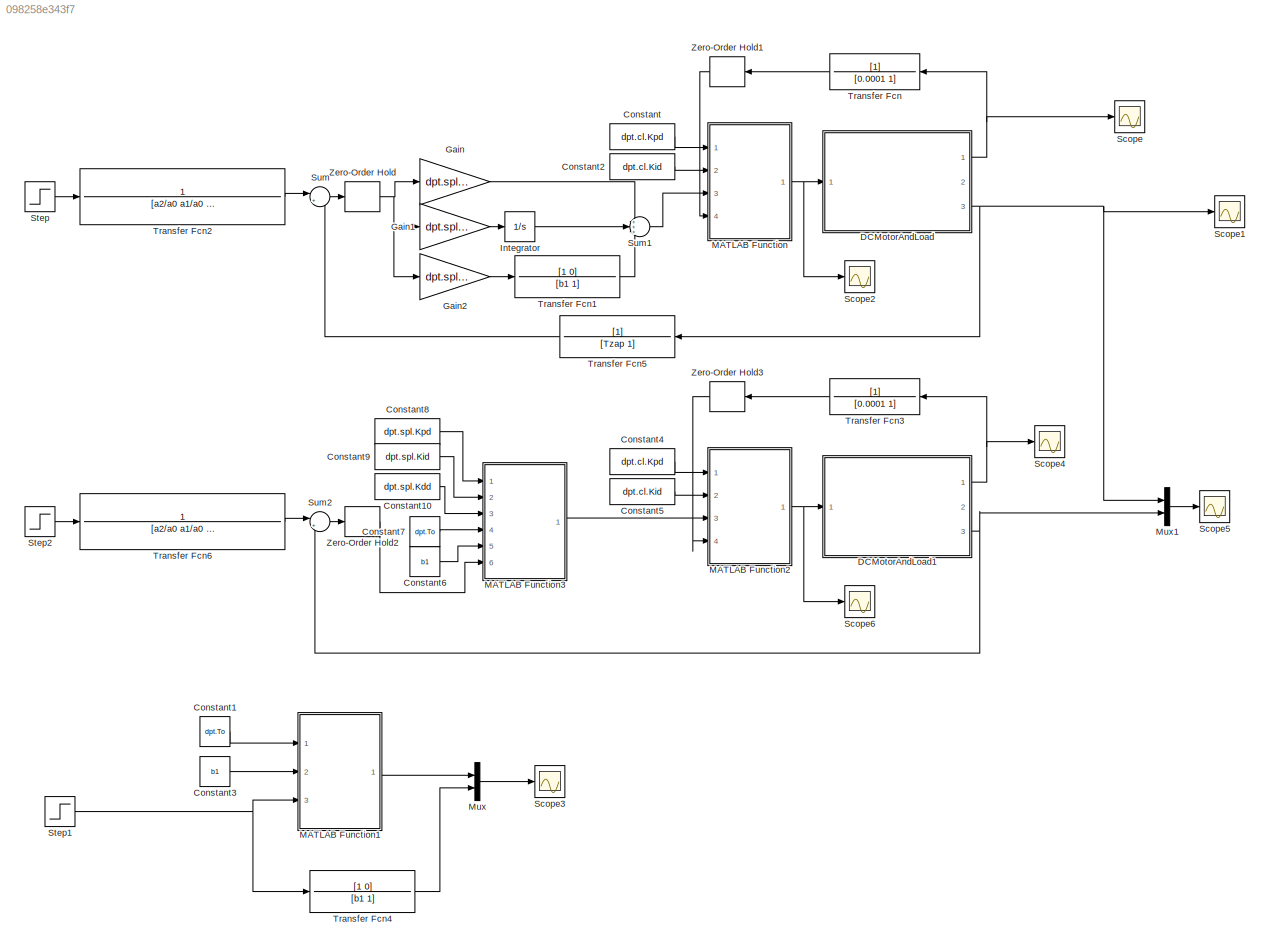
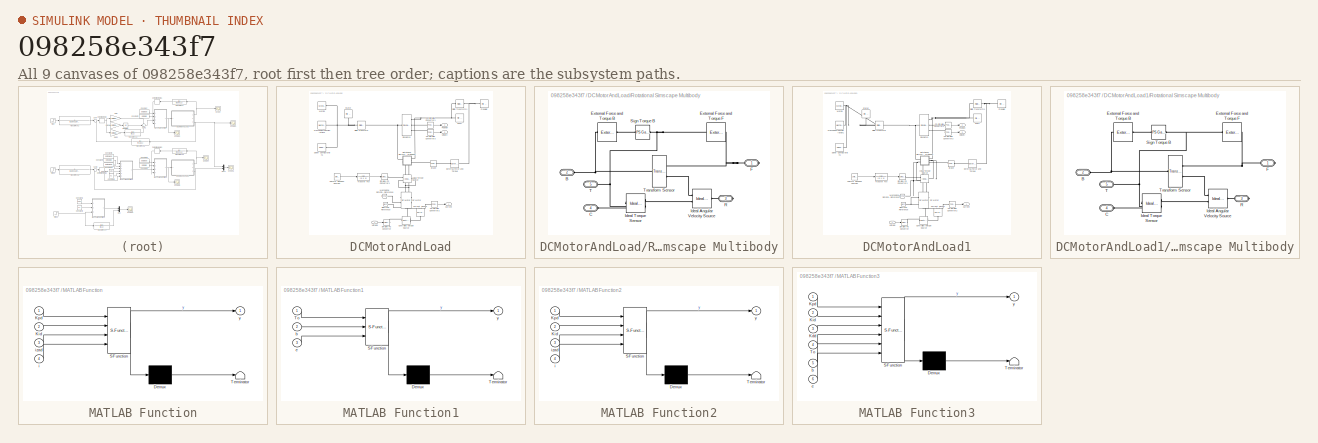
[diagram: thumbnail index - all 9 canvases of the model, root first then tree order]
MODEL slx_098258e343f7
KIND model
CONFIG AbsTol = auto
CONFIG EnableMultiTasking = off
CONFIG FixedStep = 0.0001
CONFIG MaxStep = 1e-3
CONFIG MinStep = auto
CONFIG RelTol = 1e-3
CONFIG SampleTimeConstraint = Unconstrained
CONFIG SolverName = ode3
CONFIG StartTime = 0.0
CONFIG StopTime = 10
BLOCK [Constant] Constant
  Value = dpt.cl.Kpd
BLOCK [Constant] Constant1
  Value = dpt.To
BLOCK [Constant] Constant10
  Value = dpt.spl.Kdd
BLOCK [Constant] Constant2
  Value = dpt.cl.Kid
BLOCK [Constant] Constant3
  Value = b1
BLOCK [Constant] Constant4
  Value = dpt.cl.Kpd
BLOCK [Constant] Constant5
  Value = dpt.cl.Kid
BLOCK [Constant] Constant6
  Value = b1
BLOCK [Constant] Constant7
  Value = dpt.To
BLOCK [Constant] Constant8
  Value = dpt.spl.Kpd
BLOCK [Constant] Constant9
  Value = dpt.spl.Kid
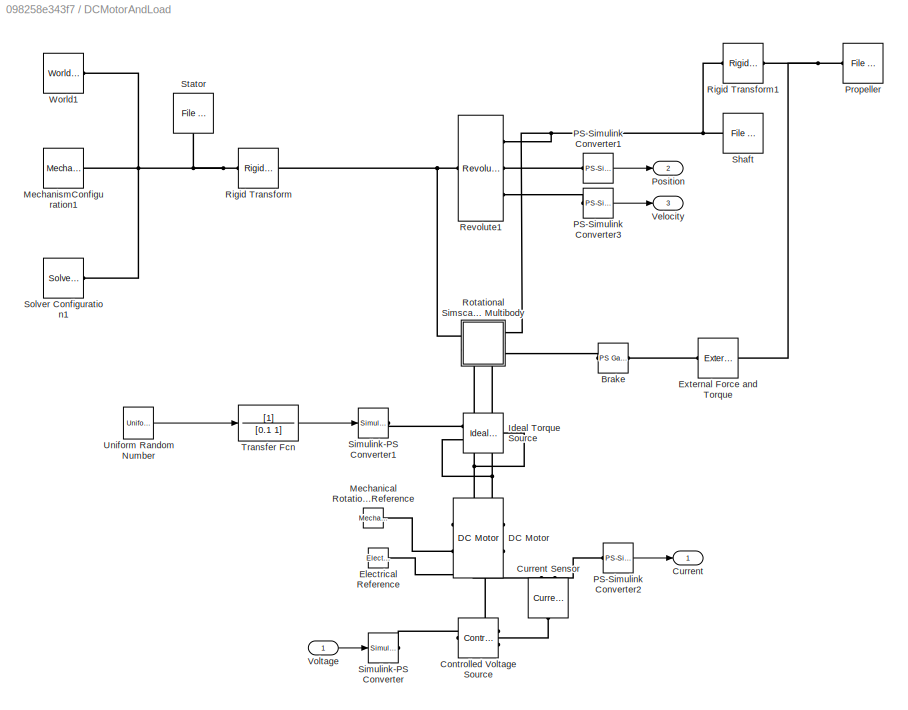
BLOCK [SubSystem] DCMotorAndLoad
  Ports = [1, 3]
  RequestExecContextInheritance = off
BLOCK [Reference] DCMotorAndLoad/Brake  REF=fl_ps_legacy_lib/Legacy Physical
Signals/Functions/PS Gain
  Ports = [0, 0, 0, 0, 0, 1, 1]
  SourceBlock = fl_ps_legacy_lib/Legacy Physical\nSignals/Functions/PS Gain
  SourceProductBaseCode = SS
  SourceType = PS Gain
BLOCK [Reference] DCMotorAndLoad/Controlled Voltage Source  REF=fl_lib/Electrical/Electrical Sources/Controlled Voltage
Source
  NameLocation = top
  Ports = [0, 0, 0, 0, 0, 1, 2]
  SourceBlock = fl_lib/Electrical/Electrical Sources/Controlled Voltage\nSource
  SourceProductBaseCode = SS
  SourceType = Controlled Voltage\nSource
BLOCK [Outport] DCMotorAndLoad/Current
  VectorParamsAs1DForOutWhenUnconnected = off
BLOCK [Reference] DCMotorAndLoad/Current Sensor  REF=fl_lib/Electrical/Electrical Sensors/Current Sensor
  NameLocation = right
  Ports = [0, 0, 0, 0, 0, 1, 2]
  SourceBlock = fl_lib/Electrical/Electrical Sensors/Current Sensor
  SourceProductBaseCode = SS
  SourceType = Current Sensor
BLOCK [Reference] DCMotorAndLoad/DC Motor  REF=ee_lib/Electromechanical/Brushed Motors/DC Motor
  NameLocation = top
  Ports = [0, 0, 0, 0, 0, 2, 2]
  SourceBlock = ee_lib/Electromechanical/Brushed Motors/DC Motor
  SourceProductBaseCode = PS
  SourceType = DC Motor
BLOCK [Reference] DCMotorAndLoad/Electrical Reference  REF=fl_lib/Electrical/Electrical Elements/Electrical Reference
  Ports = [0, 0, 0, 0, 0, 1]
  SourceBlock = fl_lib/Electrical/Electrical Elements/Electrical Reference
  SourceProductBaseCode = SS
  SourceType = Electrical Reference
BLOCK [Reference] DCMotorAndLoad/External Force and Torque  REF=sm_lib/Forces and
Torques/External Force
and Torque
  Ports = [0, 0, 0, 0, 0, 1, 1]
  SourceBlock = sm_lib/Forces and\nTorques/External Force\nand Torque
  SourceProductBaseCode = MS
  SourceType = External Force\nand Torque
BLOCK [Reference] DCMotorAndLoad/Ideal Torque Source  REF=fl_lib/Mechanical/Mechanical Sources/Ideal Torque Source
  Ports = [0, 0, 0, 0, 0, 1, 2]
  SourceBlock = fl_lib/Mechanical/Mechanical Sources/Ideal Torque Source
  SourceProductBaseCode = SS
  SourceType = Ideal Torque Source
BLOCK [Reference] DCMotorAndLoad/Mechanical Rotational Reference  REF=fl_lib/Mechanical/Rotational Elements/Mechanical
Rotational Reference
  NameLocation = top
  Ports = [0, 0, 0, 0, 0, 1]
  SourceBlock = fl_lib/Mechanical/Rotational Elements/Mechanical\nRotational Reference
  SourceProductBaseCode = SS
  SourceType = Mechanical\nRotational Reference
BLOCK [Reference] DCMotorAndLoad/MechanismConfiguration1  REF=sm_lib/Utilities/Mechanism
Configuration
  Ports = [0, 0, 0, 0, 0, 0, 1]
  SourceBlock = sm_lib/Utilities/Mechanism\nConfiguration
  SourceProductBaseCode = MS
  SourceType = Mechanism\nConfiguration
BLOCK [Reference] DCMotorAndLoad/PS-Simulink Converter1  REF=nesl_utility/PS-Simulink
Converter
  Ports = [0, 1, 0, 0, 0, 1]
  SourceBlock = nesl_utility/PS-Simulink\nConverter
  SourceProductBaseCode = SS
  SourceType = PS-Simulink\nConverter
BLOCK [Reference] DCMotorAndLoad/PS-Simulink Converter2  REF=nesl_utility/PS-Simulink
Converter
  Ports = [0, 1, 0, 0, 0, 1]
  SourceBlock = nesl_utility/PS-Simulink\nConverter
  SourceProductBaseCode = SS
  SourceType = PS-Simulink\nConverter
BLOCK [Reference] DCMotorAndLoad/PS-Simulink Converter3  REF=nesl_utility/PS-Simulink
Converter
  Ports = [0, 1, 0, 0, 0, 1]
  SourceBlock = nesl_utility/PS-Simulink\nConverter
  SourceProductBaseCode = SS
  SourceType = PS-Simulink\nConverter
BLOCK [Outport] DCMotorAndLoad/Position
  Port = 2
  VectorParamsAs1DForOutWhenUnconnected = off
BLOCK [Reference] DCMotorAndLoad/Propeller  REF=sm_lib/Body Elements/File Solid
  NameLocation = top
  Ports = [0, 0, 0, 0, 0, 0, 1]
  SourceBlock = sm_lib/Body Elements/File Solid
  SourceProductBaseCode = MS
  SourceType = File Solid
BLOCK [Reference] DCMotorAndLoad/Revolute1  REF=sm_lib/Joints/Revolute Joint
  Ports = [0, 0, 0, 0, 0, 1, 3]
  SourceBlock = sm_lib/Joints/Revolute Joint
  SourceProductBaseCode = MS
  SourceType = Revolute Joint
BLOCK [Reference] DCMotorAndLoad/Rigid Transform  REF=sm_lib/Frames and
Transforms/Rigid
Transform
  Ports = [0, 0, 0, 0, 0, 1, 1]
  SourceBlock = sm_lib/Frames and\nTransforms/Rigid\nTransform
  SourceProductBaseCode = MS
  SourceType = Rigid\nTransform
BLOCK [Reference] DCMotorAndLoad/Rigid Transform1  REF=sm_lib/Frames and
Transforms/Rigid
Transform
  Ports = [0, 0, 0, 0, 0, 1, 1]
  SourceBlock = sm_lib/Frames and\nTransforms/Rigid\nTransform
  SourceProductBaseCode = MS
  SourceType = Rigid\nTransform
BLOCK [SubSystem] DCMotorAndLoad/Rotational Simscape Multibody
  Ports = [0, 0, 0, 0, 0, 2, 3]
  RequestExecContextInheritance = off
BLOCK [PMIOPort] DCMotorAndLoad/Rotational Simscape Multibody/B
  Port = 2
  Side = Left
BLOCK [PMIOPort] DCMotorAndLoad/Rotational Simscape Multibody/C
  Port = 4
  Side = Left
BLOCK [Reference] DCMotorAndLoad/Rotational Simscape Multibody/External Force and Torque B  REF=sm_lib/Forces and
Torques/External Force
and Torque
  NameLocation = top
  Ports = [0, 0, 0, 0, 0, 1, 1]
  SourceBlock = sm_lib/Forces and\nTorques/External Force\nand Torque
  SourceProductBaseCode = MS
  SourceType = External Force\nand Torque
BLOCK [Reference] DCMotorAndLoad/Rotational Simscape Multibody/External Force and Torque F  REF=sm_lib/Forces and
Torques/External Force
and Torque
  NameLocation = top
  Ports = [0, 0, 0, 0, 0, 1, 1]
  SourceBlock = sm_lib/Forces and\nTorques/External Force\nand Torque
  SourceProductBaseCode = MS
  SourceType = External Force\nand Torque
BLOCK [PMIOPort] DCMotorAndLoad/Rotational Simscape Multibody/F
  Side = Right
BLOCK [Reference] DCMotorAndLoad/Rotational Simscape Multibody/Ideal Angular Velocity Source  REF=fl_lib/Mechanical/Mechanical Sources/Ideal Angular
Velocity Source
  Ports = [0, 0, 0, 0, 0, 1, 2]
  SourceBlock = fl_lib/Mechanical/Mechanical Sources/Ideal Angular\nVelocity Source
  SourceProductBaseCode = SS
  SourceType = Ideal Angular\nVelocity Source
BLOCK [Reference] DCMotorAndLoad/Rotational Simscape Multibody/Ideal Torque Sensor  REF=fl_lib/Mechanical/Mechanical Sensors/Ideal Torque Sensor
  Ports = [0, 0, 0, 0, 0, 1, 2]
  SourceBlock = fl_lib/Mechanical/Mechanical Sensors/Ideal Torque Sensor
  SourceProductBaseCode = SS
  SourceType = Ideal Torque Sensor
BLOCK [PMIOPort] DCMotorAndLoad/Rotational Simscape Multibody/R
  Port = 3
  Side = Right
BLOCK [Reference] DCMotorAndLoad/Rotational Simscape Multibody/Sign Torque B  REF=fl_ps_legacy_lib/Legacy Physical
Signals/Functions/PS Gain
  Ports = [0, 0, 0, 0, 0, 1, 1]
  SourceBlock = fl_ps_legacy_lib/Legacy Physical\nSignals/Functions/PS Gain
  SourceProductBaseCode = SS
  SourceType = PS Gain
BLOCK [PMIOPort] DCMotorAndLoad/Rotational Simscape Multibody/T
  Port = 5
  Side = Right
BLOCK [Reference] DCMotorAndLoad/Rotational Simscape Multibody/Transform Sensor  REF=sm_lib/Frames and
Transforms/Transform
Sensor
  Ports = [0, 0, 0, 0, 0, 1, 2]
  SourceBlock = sm_lib/Frames and\nTransforms/Transform\nSensor
  SourceProductBaseCode = MS
  SourceType = Transform\nSensor
BLOCK [Reference] DCMotorAndLoad/Shaft  REF=sm_lib/Body Elements/File Solid
  Ports = [0, 0, 0, 0, 0, 0, 1]
  SourceBlock = sm_lib/Body Elements/File Solid
  SourceProductBaseCode = MS
  SourceType = File Solid
BLOCK [Reference] DCMotorAndLoad/Simulink-PS Converter  REF=nesl_utility/Simulink-PS
Converter
  Ports = [1, 0, 0, 0, 0, 0, 1]
  SourceBlock = nesl_utility/Simulink-PS\nConverter
  SourceProductBaseCode = SS
  SourceType = Simulink-PS\nConverter
BLOCK [Reference] DCMotorAndLoad/Simulink-PS Converter1  REF=nesl_utility/Simulink-PS
Converter
  Ports = [1, 0, 0, 0, 0, 0, 1]
  SourceBlock = nesl_utility/Simulink-PS\nConverter
  SourceProductBaseCode = SS
  SourceType = Simulink-PS\nConverter
BLOCK [Reference] DCMotorAndLoad/Solver Configuration1  REF=nesl_utility/Solver
Configuration
  Ports = [0, 0, 0, 0, 0, 0, 1]
  SourceBlock = nesl_utility/Solver\nConfiguration
  SourceProductBaseCode = SS
  SourceType = Solver\nConfiguration
BLOCK [Reference] DCMotorAndLoad/Stator  REF=sm_lib/Body Elements/File Solid
  NameLocation = left
  Ports = [0, 0, 0, 0, 0, 0, 1]
  SourceBlock = sm_lib/Body Elements/File Solid
  SourceProductBaseCode = MS
  SourceType = File Solid
BLOCK [TransferFcn] DCMotorAndLoad/Transfer Fcn
  Denominator = [0.1 1]
BLOCK [UniformRandomNumber] DCMotorAndLoad/Uniform Random Number
  SampleTime = 0.001
BLOCK [Outport] DCMotorAndLoad/Velocity
  Port = 3
  VectorParamsAs1DForOutWhenUnconnected = off
BLOCK [Inport] DCMotorAndLoad/Voltage
BLOCK [Reference] DCMotorAndLoad/World1  REF=sm_lib/Frames and
Transforms/World Frame
  Ports = [0, 0, 0, 0, 0, 0, 1]
  SourceBlock = sm_lib/Frames and\nTransforms/World Frame
  SourceProductBaseCode = MS
  SourceType = World Frame
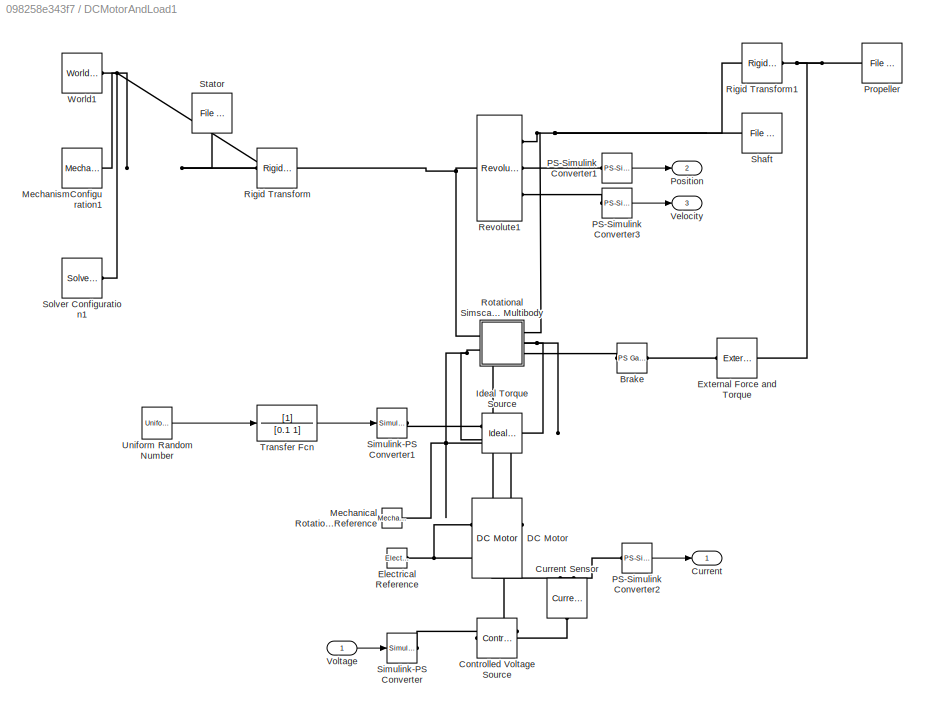
BLOCK [SubSystem] DCMotorAndLoad1
  Ports = [1, 3]
  RequestExecContextInheritance = off
BLOCK [Reference] DCMotorAndLoad1/Brake  REF=fl_ps_legacy_lib/Legacy Physical
Signals/Functions/PS Gain
  Ports = [0, 0, 0, 0, 0, 1, 1]
  SourceBlock = fl_ps_legacy_lib/Legacy Physical\nSignals/Functions/PS Gain
  SourceProductBaseCode = SS
  SourceType = PS Gain
BLOCK [Reference] DCMotorAndLoad1/Controlled Voltage Source  REF=fl_lib/Electrical/Electrical Sources/Controlled Voltage
Source
  NameLocation = top
  Ports = [0, 0, 0, 0, 0, 1, 2]
  SourceBlock = fl_lib/Electrical/Electrical Sources/Controlled Voltage\nSource
  SourceProductBaseCode = SS
  SourceType = Controlled Voltage\nSource
BLOCK [Outport] DCMotorAndLoad1/Current
  VectorParamsAs1DForOutWhenUnconnected = off
BLOCK [Reference] DCMotorAndLoad1/Current Sensor  REF=fl_lib/Electrical/Electrical Sensors/Current Sensor
  NameLocation = right
  Ports = [0, 0, 0, 0, 0, 1, 2]
  SourceBlock = fl_lib/Electrical/Electrical Sensors/Current Sensor
  SourceProductBaseCode = SS
  SourceType = Current Sensor
BLOCK [Reference] DCMotorAndLoad1/DC Motor  REF=ee_lib/Electromechanical/Brushed Motors/DC Motor
  NameLocation = top
  Ports = [0, 0, 0, 0, 0, 2, 2]
  SourceBlock = ee_lib/Electromechanical/Brushed Motors/DC Motor
  SourceProductBaseCode = PS
  SourceType = DC Motor
BLOCK [Reference] DCMotorAndLoad1/Electrical Reference  REF=fl_lib/Electrical/Electrical Elements/Electrical Reference
  Ports = [0, 0, 0, 0, 0, 1]
  SourceBlock = fl_lib/Electrical/Electrical Elements/Electrical Reference
  SourceProductBaseCode = SS
  SourceType = Electrical Reference
BLOCK [Reference] DCMotorAndLoad1/External Force and Torque  REF=sm_lib/Forces and
Torques/External Force
and Torque
  Ports = [0, 0, 0, 0, 0, 1, 1]
  SourceBlock = sm_lib/Forces and\nTorques/External Force\nand Torque
  SourceProductBaseCode = MS
  SourceType = External Force\nand Torque
BLOCK [Reference] DCMotorAndLoad1/Ideal Torque Source  REF=fl_lib/Mechanical/Mechanical Sources/Ideal Torque Source
  Ports = [0, 0, 0, 0, 0, 1, 2]
  SourceBlock = fl_lib/Mechanical/Mechanical Sources/Ideal Torque Source
  SourceProductBaseCode = SS
  SourceType = Ideal Torque Source
BLOCK [Reference] DCMotorAndLoad1/Mechanical Rotational Reference  REF=fl_lib/Mechanical/Rotational Elements/Mechanical
Rotational Reference
  NameLocation = top
  Ports = [0, 0, 0, 0, 0, 1]
  SourceBlock = fl_lib/Mechanical/Rotational Elements/Mechanical\nRotational Reference
  SourceProductBaseCode = SS
  SourceType = Mechanical\nRotational Reference
BLOCK [Reference] DCMotorAndLoad1/MechanismConfiguration1  REF=sm_lib/Utilities/Mechanism
Configuration
  Ports = [0, 0, 0, 0, 0, 0, 1]
  SourceBlock = sm_lib/Utilities/Mechanism\nConfiguration
  SourceProductBaseCode = MS
  SourceType = Mechanism\nConfiguration
BLOCK [Reference] DCMotorAndLoad1/PS-Simulink Converter1  REF=nesl_utility/PS-Simulink
Converter
  Ports = [0, 1, 0, 0, 0, 1]
  SourceBlock = nesl_utility/PS-Simulink\nConverter
  SourceProductBaseCode = SS
  SourceType = PS-Simulink\nConverter
BLOCK [Reference] DCMotorAndLoad1/PS-Simulink Converter2  REF=nesl_utility/PS-Simulink
Converter
  Ports = [0, 1, 0, 0, 0, 1]
  SourceBlock = nesl_utility/PS-Simulink\nConverter
  SourceProductBaseCode = SS
  SourceType = PS-Simulink\nConverter
BLOCK [Reference] DCMotorAndLoad1/PS-Simulink Converter3  REF=nesl_utility/PS-Simulink
Converter
  Ports = [0, 1, 0, 0, 0, 1]
  SourceBlock = nesl_utility/PS-Simulink\nConverter
  SourceProductBaseCode = SS
  SourceType = PS-Simulink\nConverter
BLOCK [Outport] DCMotorAndLoad1/Position
  Port = 2
  VectorParamsAs1DForOutWhenUnconnected = off
BLOCK [Reference] DCMotorAndLoad1/Propeller  REF=sm_lib/Body Elements/File Solid
  NameLocation = top
  Ports = [0, 0, 0, 0, 0, 0, 1]
  SourceBlock = sm_lib/Body Elements/File Solid
  SourceProductBaseCode = MS
  SourceType = File Solid
BLOCK [Reference] DCMotorAndLoad1/Revolute1  REF=sm_lib/Joints/Revolute Joint
  Ports = [0, 0, 0, 0, 0, 1, 3]
  SourceBlock = sm_lib/Joints/Revolute Joint
  SourceProductBaseCode = MS
  SourceType = Revolute Joint
BLOCK [Reference] DCMotorAndLoad1/Rigid Transform  REF=sm_lib/Frames and
Transforms/Rigid
Transform
  Ports = [0, 0, 0, 0, 0, 1, 1]
  SourceBlock = sm_lib/Frames and\nTransforms/Rigid\nTransform
  SourceProductBaseCode = MS
  SourceType = Rigid\nTransform
BLOCK [Reference] DCMotorAndLoad1/Rigid Transform1  REF=sm_lib/Frames and
Transforms/Rigid
Transform
  Ports = [0, 0, 0, 0, 0, 1, 1]
  SourceBlock = sm_lib/Frames and\nTransforms/Rigid\nTransform
  SourceProductBaseCode = MS
  SourceType = Rigid\nTransform
BLOCK [SubSystem] DCMotorAndLoad1/Rotational Simscape Multibody
  Ports = [0, 0, 0, 0, 0, 2, 3]
  RequestExecContextInheritance = off
BLOCK [PMIOPort] DCMotorAndLoad1/Rotational Simscape Multibody/B
  Port = 2
  Side = Left
BLOCK [PMIOPort] DCMotorAndLoad1/Rotational Simscape Multibody/C
  Port = 4
  Side = Left
BLOCK [Reference] DCMotorAndLoad1/Rotational Simscape Multibody/External Force and Torque B  REF=sm_lib/Forces and
Torques/External Force
and Torque
  NameLocation = top
  Ports = [0, 0, 0, 0, 0, 1, 1]
  SourceBlock = sm_lib/Forces and\nTorques/External Force\nand Torque
  SourceProductBaseCode = MS
  SourceType = External Force\nand Torque
BLOCK [Reference] DCMotorAndLoad1/Rotational Simscape Multibody/External Force and Torque F  REF=sm_lib/Forces and
Torques/External Force
and Torque
  NameLocation = top
  Ports = [0, 0, 0, 0, 0, 1, 1]
  SourceBlock = sm_lib/Forces and\nTorques/External Force\nand Torque
  SourceProductBaseCode = MS
  SourceType = External Force\nand Torque
BLOCK [PMIOPort] DCMotorAndLoad1/Rotational Simscape Multibody/F
  Side = Right
BLOCK [Reference] DCMotorAndLoad1/Rotational Simscape Multibody/Ideal Angular Velocity Source  REF=fl_lib/Mechanical/Mechanical Sources/Ideal Angular
Velocity Source
  Ports = [0, 0, 0, 0, 0, 1, 2]
  SourceBlock = fl_lib/Mechanical/Mechanical Sources/Ideal Angular\nVelocity Source
  SourceProductBaseCode = SS
  SourceType = Ideal Angular\nVelocity Source
BLOCK [Reference] DCMotorAndLoad1/Rotational Simscape Multibody/Ideal Torque Sensor  REF=fl_lib/Mechanical/Mechanical Sensors/Ideal Torque Sensor
  Ports = [0, 0, 0, 0, 0, 1, 2]
  SourceBlock = fl_lib/Mechanical/Mechanical Sensors/Ideal Torque Sensor
  SourceProductBaseCode = SS
  SourceType = Ideal Torque Sensor
BLOCK [PMIOPort] DCMotorAndLoad1/Rotational Simscape Multibody/R
  Port = 3
  Side = Right
BLOCK [Reference] DCMotorAndLoad1/Rotational Simscape Multibody/Sign Torque B  REF=fl_ps_legacy_lib/Legacy Physical
Signals/Functions/PS Gain
  Ports = [0, 0, 0, 0, 0, 1, 1]
  SourceBlock = fl_ps_legacy_lib/Legacy Physical\nSignals/Functions/PS Gain
  SourceProductBaseCode = SS
  SourceType = PS Gain
BLOCK [PMIOPort] DCMotorAndLoad1/Rotational Simscape Multibody/T
  Port = 5
  Side = Right
BLOCK [Reference] DCMotorAndLoad1/Rotational Simscape Multibody/Transform Sensor  REF=sm_lib/Frames and
Transforms/Transform
Sensor
  Ports = [0, 0, 0, 0, 0, 1, 2]
  SourceBlock = sm_lib/Frames and\nTransforms/Transform\nSensor
  SourceProductBaseCode = MS
  SourceType = Transform\nSensor
BLOCK [Reference] DCMotorAndLoad1/Shaft  REF=sm_lib/Body Elements/File Solid
  Ports = [0, 0, 0, 0, 0, 0, 1]
  SourceBlock = sm_lib/Body Elements/File Solid
  SourceProductBaseCode = MS
  SourceType = File Solid
BLOCK [Reference] DCMotorAndLoad1/Simulink-PS Converter  REF=nesl_utility/Simulink-PS
Converter
  Ports = [1, 0, 0, 0, 0, 0, 1]
  SourceBlock = nesl_utility/Simulink-PS\nConverter
  SourceProductBaseCode = SS
  SourceType = Simulink-PS\nConverter
BLOCK [Reference] DCMotorAndLoad1/Simulink-PS Converter1  REF=nesl_utility/Simulink-PS
Converter
  Ports = [1, 0, 0, 0, 0, 0, 1]
  SourceBlock = nesl_utility/Simulink-PS\nConverter
  SourceProductBaseCode = SS
  SourceType = Simulink-PS\nConverter
BLOCK [Reference] DCMotorAndLoad1/Solver Configuration1  REF=nesl_utility/Solver
Configuration
  Ports = [0, 0, 0, 0, 0, 0, 1]
  SourceBlock = nesl_utility/Solver\nConfiguration
  SourceProductBaseCode = SS
  SourceType = Solver\nConfiguration
BLOCK [Reference] DCMotorAndLoad1/Stator  REF=sm_lib/Body Elements/File Solid
  NameLocation = left
  Ports = [0, 0, 0, 0, 0, 0, 1]
  SourceBlock = sm_lib/Body Elements/File Solid
  SourceProductBaseCode = MS
  SourceType = File Solid
BLOCK [TransferFcn] DCMotorAndLoad1/Transfer Fcn
  Denominator = [0.1 1]
BLOCK [UniformRandomNumber] DCMotorAndLoad1/Uniform Random Number
  SampleTime = 0.001
BLOCK [Outport] DCMotorAndLoad1/Velocity
  Port = 3
  VectorParamsAs1DForOutWhenUnconnected = off
BLOCK [Inport] DCMotorAndLoad1/Voltage
BLOCK [Reference] DCMotorAndLoad1/World1  REF=sm_lib/Frames and
Transforms/World Frame
  Ports = [0, 0, 0, 0, 0, 0, 1]
  SourceBlock = sm_lib/Frames and\nTransforms/World Frame
  SourceProductBaseCode = MS
  SourceType = World Frame
BLOCK [Gain] Gain
  Gain = dpt.spl.Kpa
BLOCK [Gain] Gain1
  Gain = dpt.spl.Kia
BLOCK [Gain] Gain2
  Gain = dpt.spl.Kda
BLOCK [Integrator] Integrator
  Ports = [1, 1]
BLOCK [SubSystem] MATLAB Function
  ErrorFcn = Stateflow.Translate.translate
  PermitHierarchicalResolution = ExplicitOnly
  Ports = [4, 1]
  RequestExecContextInheritance = off
  SFBlockType = MATLAB Function
  SystemSampleTime = dpt.To
  TreatAsAtomicUnit = on
BLOCK [Demux] MATLAB Function/ Demux 
  Outputs = 1
  Ports = [1, 1]
BLOCK [S-Function] MATLAB Function/ SFunction 
  EnableBusSupport = on
  FunctionName = sf_sfun
  PortCounts = [4 2]
  Ports = [4, 2]
  SFcnIsStateOwnerBlock = off
  SFunctionDeploymentMode = off
  Tag = Stateflow S-Function 2
BLOCK [Terminator] MATLAB Function/ Terminator 
BLOCK [Inport] MATLAB Function/Kid
  Port = 2
BLOCK [Inport] MATLAB Function/Kpd
BLOCK [Inport] MATLAB Function/i
  Port = 4
BLOCK [Inport] MATLAB Function/izad
  Port = 3
BLOCK [Outport] MATLAB Function/y
BLOCK [SubSystem] MATLAB Function1
  ErrorFcn = Stateflow.Translate.translate
  PermitHierarchicalResolution = ExplicitOnly
  Ports = [3, 1]
  RequestExecContextInheritance = off
  SFBlockType = MATLAB Function
  SystemSampleTime = dpt.To
  TreatAsAtomicUnit = on
BLOCK [Demux] MATLAB Function1/ Demux 
  Outputs = 1
  Ports = [1, 1]
BLOCK [S-Function] MATLAB Function1/ SFunction 
  EnableBusSupport = on
  FunctionName = sf_sfun
  PortCounts = [3 2]
  Ports = [3, 2]
  SFcnIsStateOwnerBlock = off
  SFunctionDeploymentMode = off
  Tag = Stateflow S-Function 1
BLOCK [Terminator] MATLAB Function1/ Terminator 
BLOCK [Inport] MATLAB Function1/To
BLOCK [Inport] MATLAB Function1/b
  Port = 2
BLOCK [Inport] MATLAB Function1/e
  Port = 3
BLOCK [Outport] MATLAB Function1/y
BLOCK [SubSystem] MATLAB Function2
  ErrorFcn = Stateflow.Translate.translate
  PermitHierarchicalResolution = ExplicitOnly
  Ports = [4, 1]
  RequestExecContextInheritance = off
  SFBlockType = MATLAB Function
  SystemSampleTime = dpt.To
  TreatAsAtomicUnit = on
BLOCK [Demux] MATLAB Function2/ Demux 
  Outputs = 1
  Ports = [1, 1]
BLOCK [S-Function] MATLAB Function2/ SFunction 
  EnableBusSupport = on
  FunctionName = sf_sfun
  PortCounts = [4 2]
  Ports = [4, 2]
  SFcnIsStateOwnerBlock = off
  SFunctionDeploymentMode = off
  Tag = Stateflow S-Function 3
BLOCK [Terminator] MATLAB Function2/ Terminator 
BLOCK [Inport] MATLAB Function2/Kid
  Port = 2
BLOCK [Inport] MATLAB Function2/Kpd
BLOCK [Inport] MATLAB Function2/i
  Port = 4
BLOCK [Inport] MATLAB Function2/izad
  Port = 3
BLOCK [Outport] MATLAB Function2/y
BLOCK [SubSystem] MATLAB Function3
  ErrorFcn = Stateflow.Translate.translate
  PermitHierarchicalResolution = ExplicitOnly
  Ports = [6, 1]
  RequestExecContextInheritance = off
  SFBlockType = MATLAB Function
  SystemSampleTime = dpt.To
  TreatAsAtomicUnit = on
BLOCK [Demux] MATLAB Function3/ Demux 
  Outputs = 1
  Ports = [1, 1]
BLOCK [S-Function] MATLAB Function3/ SFunction 
  EnableBusSupport = on
  FunctionName = sf_sfun
  PortCounts = [6 2]
  Ports = [6, 2]
  SFcnIsStateOwnerBlock = off
  SFunctionDeploymentMode = off
  Tag = Stateflow S-Function 4
BLOCK [Terminator] MATLAB Function3/ Terminator 
BLOCK [Inport] MATLAB Function3/Kdd
  Port = 3
BLOCK [Inport] MATLAB Function3/Kid
  Port = 2
BLOCK [Inport] MATLAB Function3/Kpd
BLOCK [Inport] MATLAB Function3/To
  Port = 4
BLOCK [Inport] MATLAB Function3/b
  Port = 5
BLOCK [Inport] MATLAB Function3/e
  Port = 6
BLOCK [Outport] MATLAB Function3/y
BLOCK [Mux] Mux
  DisplayOption = bar
  Inputs = 2
  Ports = [2, 1]
BLOCK [Mux] Mux1
  DisplayOption = bar
  Inputs = 2
  Ports = [2, 1]
BLOCK [Scope] Scope
  Floating = off
  NumInputPorts = 1
  Ports = [1]
  ScopeSpecificationString = Simulink.scopes.TimeScopeBlockCfg('CurrentConfiguration', extmgr.ConfigurationSet(extmgr.Configuration('Core','General UI',true),extmgr.Configuration('Core','Source UI',true),extmgr.Configuration('Sources','WiredSimulink',true),extmgr.Configuration('Visuals','Time Domain',true,'SerializedDisplays',{struct('MinYLimReal','-0.125','MaxYLimReal','1.125','YLabelReal','','MinYLimMag','0.00000','MaxYLimM...<+1428ch>
BLOCK [Scope] Scope1
  Floating = off
  NumInputPorts = 1
  Ports = [1]
  ScopeSpecificationString = Simulink.scopes.TimeScopeBlockCfg('CurrentConfiguration', extmgr.ConfigurationSet(extmgr.Configuration('Core','General UI',true),extmgr.Configuration('Core','Source UI',true),extmgr.Configuration('Sources','WiredSimulink',true,'DataLoggingVariableName','y1','DataLogging',true,'DataLoggingSaveFormat','Array'),extmgr.Configuration('Visuals','Time Domain',true,'SerializedDisplays',{struct('MinYLimRea...<+1532ch>
BLOCK [Scope] Scope2
  Floating = off
  NumInputPorts = 1
  Ports = [1]
  ScopeSpecificationString = Simulink.scopes.TimeScopeBlockCfg('CurrentConfiguration', extmgr.ConfigurationSet(extmgr.Configuration('Core','General UI',true),extmgr.Configuration('Core','Source UI',true),extmgr.Configuration('Sources','WiredSimulink',true,'DataLoggingVariableName','ScopeData1'),extmgr.Configuration('Visuals','Time Domain',true,'SerializedDisplays',{struct('MinYLimReal','-1.09061','MaxYLimReal','10.96661','YLa...<+1449ch>
BLOCK [Scope] Scope3
  Floating = off
  NumInputPorts = 1
  Ports = [1]
  ScopeSpecificationString = Simulink.scopes.TimeScopeBlockCfg('CurrentConfiguration', extmgr.ConfigurationSet(extmgr.Configuration('Core','General UI',true),extmgr.Configuration('Core','Source UI',true),extmgr.Configuration('Sources','WiredSimulink',true,'DataLoggingVariableName','ScopeData1','DataLogging',true,'DataLoggingSaveFormat','Array'),extmgr.Configuration('Visuals','Time Domain',true,'SerializedDisplays',{struct('Mi...<+1564ch>
BLOCK [Scope] Scope4
  Floating = off
  NumInputPorts = 1
  Ports = [1]
  ScopeSpecificationString = Simulink.scopes.TimeScopeBlockCfg('CurrentConfiguration', extmgr.ConfigurationSet(extmgr.Configuration('Core','General UI',true),extmgr.Configuration('Core','Source UI',true),extmgr.Configuration('Sources','WiredSimulink',true,'DataLoggingVariableName','ScopeData2'),extmgr.Configuration('Visuals','Time Domain',true,'SerializedDisplays',{struct('MinYLimReal','-0.125','MaxYLimReal','1.125','YLabelRe...<+1467ch>
BLOCK [Scope] Scope5
  Floating = off
  NumInputPorts = 1
  Ports = [1]
  ScopeSpecificationString = Simulink.scopes.TimeScopeBlockCfg('CurrentConfiguration', extmgr.ConfigurationSet(extmgr.Configuration('Core','General UI',true),extmgr.Configuration('Core','Source UI',true),extmgr.Configuration('Sources','WiredSimulink',true,'DataLoggingVariableName','ScopeData3','DataLogging',true,'DataLoggingSaveFormat','Array'),extmgr.Configuration('Visuals','Time Domain',true,'SerializedDisplays',{struct('Mi...<+1556ch>
BLOCK [Scope] Scope6
  Floating = off
  NumInputPorts = 1
  Ports = [1]
  ScopeSpecificationString = Simulink.scopes.TimeScopeBlockCfg('CurrentConfiguration', extmgr.ConfigurationSet(extmgr.Configuration('Core','General UI',true),extmgr.Configuration('Core','Source UI',true),extmgr.Configuration('Sources','WiredSimulink',true,'DataLoggingVariableName','ScopeData4'),extmgr.Configuration('Visuals','Time Domain',true,'SerializedDisplays',{struct('MinYLimReal','-1.09061','MaxYLimReal','10.96661','YLa...<+1449ch>
BLOCK [Step] Step
  After = 180
  SampleTime = 0
BLOCK [Step] Step1
  After = 180
  SampleTime = 0
BLOCK [Step] Step2
  After = 180
  SampleTime = 0
BLOCK [Sum] Sum
  Inputs = |+-
  Ports = [2, 1]
BLOCK [Sum] Sum1
  Inputs = +++
  Ports = [3, 1]
BLOCK [Sum] Sum2
  Inputs = |+-
  Ports = [2, 1]
BLOCK [TransferFcn] Transfer Fcn
  Denominator = [0.0001 1]
BLOCK [TransferFcn] Transfer Fcn1
  Denominator = [b1 1]
  Numerator = [1 0]
BLOCK [TransferFcn] Transfer Fcn2
  Denominator = [a2/a0 a1/a0 1]
  Numerator = 1
BLOCK [TransferFcn] Transfer Fcn3
  Denominator = [0.0001 1]
BLOCK [TransferFcn] Transfer Fcn4
  Denominator = [b1 1]
  Numerator = [1 0]
BLOCK [TransferFcn] Transfer Fcn5
  Denominator = [Tzap 1]
BLOCK [TransferFcn] Transfer Fcn6
  Denominator = [a2/a0 a1/a0 1]
  Numerator = 1
BLOCK [ZeroOrderHold] Zero-Order Hold
  SampleTime = dpt.To
BLOCK [ZeroOrderHold] Zero-Order Hold1
  SampleTime = dpt.To
BLOCK [ZeroOrderHold] Zero-Order Hold2
  SampleTime = dpt.To
BLOCK [ZeroOrderHold] Zero-Order Hold3
  SampleTime = dpt.To
LINE Constant10:1 -> MATLAB Function3:3
LINE Constant1:1 -> MATLAB Function1:1
LINE Constant2:1 -> MATLAB Function:2
LINE Constant3:1 -> MATLAB Function1:2
LINE Constant4:1 -> MATLAB Function2:1
LINE Constant5:1 -> MATLAB Function2:2
LINE Constant6:1 -> MATLAB Function3:5
LINE Constant7:1 -> MATLAB Function3:4
LINE Constant8:1 -> MATLAB Function3:1
LINE Constant9:1 -> MATLAB Function3:2
LINE Constant:1 -> MATLAB Function:1
LINE DCMotorAndLoad/PS-Simulink Converter1:1 -> DCMotorAndLoad/Position:1
LINE DCMotorAndLoad/PS-Simulink Converter2:1 -> DCMotorAndLoad/Current:1
LINE DCMotorAndLoad/PS-Simulink Converter3:1 -> DCMotorAndLoad/Velocity:1
LINE DCMotorAndLoad/Transfer Fcn:1 -> DCMotorAndLoad/Simulink-PS Converter1:1
LINE DCMotorAndLoad/Uniform Random Number:1 -> DCMotorAndLoad/Transfer Fcn:1
LINE DCMotorAndLoad/Voltage:1 -> DCMotorAndLoad/Simulink-PS Converter:1
LINE DCMotorAndLoad1/PS-Simulink Converter1:1 -> DCMotorAndLoad1/Position:1
LINE DCMotorAndLoad1/PS-Simulink Converter2:1 -> DCMotorAndLoad1/Current:1
LINE DCMotorAndLoad1/PS-Simulink Converter3:1 -> DCMotorAndLoad1/Velocity:1
LINE DCMotorAndLoad1/Transfer Fcn:1 -> DCMotorAndLoad1/Simulink-PS Converter1:1
LINE DCMotorAndLoad1/Uniform Random Number:1 -> DCMotorAndLoad1/Transfer Fcn:1
LINE DCMotorAndLoad1/Voltage:1 -> DCMotorAndLoad1/Simulink-PS Converter:1
NET DCMotorAndLoad1:1 -> Scope4:1, Transfer Fcn3:1
NET DCMotorAndLoad1:3 -> Mux1:2, Sum2:2
NET DCMotorAndLoad:1 -> Scope:1, Transfer Fcn:1
NET DCMotorAndLoad:3 -> Mux1:1, Scope1:1, Transfer Fcn5:1
LINE Gain1:1 -> Integrator:1
LINE Gain2:1 -> Transfer Fcn1:1
LINE Gain:1 -> Sum1:1
LINE Integrator:1 -> Sum1:2
LINE MATLAB Function1:1 -> Mux:1
NET MATLAB Function2:1 -> DCMotorAndLoad1:1, Scope6:1
LINE MATLAB Function3:1 -> MATLAB Function2:3
NET MATLAB Function:1 -> DCMotorAndLoad:1, Scope2:1
LINE Mux1:1 -> Scope5:1
LINE Mux:1 -> Scope3:1
NET Step1:1 -> MATLAB Function1:3, Transfer Fcn4:1
LINE Step2:1 -> Transfer Fcn6:1
LINE Step:1 -> Transfer Fcn2:1
LINE Sum1:1 -> MATLAB Function:3
LINE Sum2:1 -> Zero-Order Hold2:1
LINE Sum:1 -> Zero-Order Hold:1
LINE Transfer Fcn1:1 -> Sum1:3
LINE Transfer Fcn2:1 -> Sum:1
LINE Transfer Fcn3:1 -> Zero-Order Hold3:1
LINE Transfer Fcn4:1 -> Mux:2
LINE Transfer Fcn5:1 -> Sum:2
LINE Transfer Fcn6:1 -> Sum2:1
LINE Transfer Fcn:1 -> Zero-Order Hold1:1
LINE Zero-Order Hold1:1 -> MATLAB Function:4
LINE Zero-Order Hold2:1 -> MATLAB Function3:6
LINE Zero-Order Hold3:1 -> MATLAB Function2:4
NET Zero-Order Hold:1 -> Gain1:1, Gain2:1, Gain:1
PLINE DCMotorAndLoad/Brake:LConn1 -- DCMotorAndLoad/Rotational Simscape Multibody:RConn3
PLINE DCMotorAndLoad/Brake:RConn1 -- DCMotorAndLoad/External Force and Torque:LConn1
PLINE DCMotorAndLoad/Controlled Voltage Source:LConn1 -- DCMotorAndLoad/Current Sensor:LConn1
PLINE DCMotorAndLoad/Controlled Voltage Source:RConn1 -- DCMotorAndLoad/Simulink-PS Converter:RConn1
PNET net1: DCMotorAndLoad/Controlled Voltage Source:RConn2 -- DCMotorAndLoad/DC Motor:RConn1 -- DCMotorAndLoad/Electrical Reference:LConn1
PLINE DCMotorAndLoad/Current Sensor:RConn1 -- DCMotorAndLoad/PS-Simulink Converter2:LConn1
PLINE DCMotorAndLoad/Current Sensor:RConn2 -- DCMotorAndLoad/DC Motor:LConn1
PNET net2: DCMotorAndLoad/DC Motor:LConn2 -- DCMotorAndLoad/Ideal Torque Source:LConn1 -- DCMotorAndLoad/Rotational Simscape Multibody:RConn2
PNET net3: DCMotorAndLoad/DC Motor:RConn2 -- DCMotorAndLoad/Ideal Torque Source:RConn2 -- DCMotorAndLoad/Mechanical Rotational Reference:LConn1 -- DCMotorAndLoad/Rotational Simscape Multibody:LConn2
PNET net4: DCMotorAndLoad/External Force and Torque:RConn1 -- DCMotorAndLoad/Propeller:RConn1 -- DCMotorAndLoad/Rigid Transform1:RConn1
PLINE DCMotorAndLoad/Ideal Torque Source:RConn1 -- DCMotorAndLoad/Simulink-PS Converter1:RConn1
PNET net5: DCMotorAndLoad/MechanismConfiguration1:RConn1 -- DCMotorAndLoad/Rigid Transform:LConn1 -- DCMotorAndLoad/Solver Configuration1:RConn1 -- DCMotorAndLoad/Stator:RConn1 -- DCMotorAndLoad/World1:RConn1
PLINE DCMotorAndLoad/PS-Simulink Converter1:LConn1 -- DCMotorAndLoad/Revolute1:RConn2
PLINE DCMotorAndLoad/PS-Simulink Converter3:LConn1 -- DCMotorAndLoad/Revolute1:RConn3
PNET net6: DCMotorAndLoad/Revolute1:LConn1 -- DCMotorAndLoad/Rigid Transform:RConn1 -- DCMotorAndLoad/Rotational Simscape Multibody:LConn1
PNET net7: DCMotorAndLoad/Revolute1:RConn1 -- DCMotorAndLoad/Rigid Transform1:LConn1 -- DCMotorAndLoad/Rotational Simscape Multibody:RConn1 -- DCMotorAndLoad/Shaft:RConn1
PNET net8: DCMotorAndLoad/Rotational Simscape Multibody/B:RConn1 -- DCMotorAndLoad/Rotational Simscape Multibody/External Force and Torque B:RConn1 -- DCMotorAndLoad/Rotational Simscape Multibody/Transform Sensor:LConn1
PLINE DCMotorAndLoad/Rotational Simscape Multibody/C:RConn1 -- DCMotorAndLoad/Rotational Simscape Multibody/Ideal Torque Sensor:RConn1
PLINE DCMotorAndLoad/Rotational Simscape Multibody/External Force and Torque B:LConn1 -- DCMotorAndLoad/Rotational Simscape Multibody/Sign Torque B:RConn1
PNET net9: DCMotorAndLoad/Rotational Simscape Multibody/External Force and Torque F:LConn1 -- DCMotorAndLoad/Rotational Simscape Multibody/Ideal Torque Sensor:RConn2 -- DCMotorAndLoad/Rotational Simscape Multibody/Sign Torque B:LConn1 -- DCMotorAndLoad/Rotational Simscape Multibody/T:RConn1
PNET net10: DCMotorAndLoad/Rotational Simscape Multibody/External Force and Torque F:RConn1 -- DCMotorAndLoad/Rotational Simscape Multibody/F:RConn1 -- DCMotorAndLoad/Rotational Simscape Multibody/Transform Sensor:RConn1
PLINE DCMotorAndLoad/Rotational Simscape Multibody/Ideal Angular Velocity Source:LConn1 -- DCMotorAndLoad/Rotational Simscape Multibody/R:RConn1
PLINE DCMotorAndLoad/Rotational Simscape Multibody/Ideal Angular Velocity Source:RConn1 -- DCMotorAndLoad/Rotational Simscape Multibody/Transform Sensor:RConn2
PLINE DCMotorAndLoad/Rotational Simscape Multibody/Ideal Angular Velocity Source:RConn2 -- DCMotorAndLoad/Rotational Simscape Multibody/Ideal Torque Sensor:LConn1
PLINE DCMotorAndLoad1/Brake:LConn1 -- DCMotorAndLoad1/Rotational Simscape Multibody:RConn3
PLINE DCMotorAndLoad1/Brake:RConn1 -- DCMotorAndLoad1/External Force and Torque:LConn1
PLINE DCMotorAndLoad1/Controlled Voltage Source:LConn1 -- DCMotorAndLoad1/Current Sensor:LConn1
PLINE DCMotorAndLoad1/Controlled Voltage Source:RConn1 -- DCMotorAndLoad1/Simulink-PS Converter:RConn1
PNET net11: DCMotorAndLoad1/Controlled Voltage Source:RConn2 -- DCMotorAndLoad1/DC Motor:RConn1 -- DCMotorAndLoad1/Electrical Reference:LConn1
PLINE DCMotorAndLoad1/Current Sensor:RConn1 -- DCMotorAndLoad1/PS-Simulink Converter2:LConn1
PLINE DCMotorAndLoad1/Current Sensor:RConn2 -- DCMotorAndLoad1/DC Motor:LConn1
PNET net12: DCMotorAndLoad1/DC Motor:LConn2 -- DCMotorAndLoad1/Ideal Torque Source:LConn1 -- DCMotorAndLoad1/Rotational Simscape Multibody:RConn2
PNET net13: DCMotorAndLoad1/DC Motor:RConn2 -- DCMotorAndLoad1/Ideal Torque Source:RConn2 -- DCMotorAndLoad1/Mechanical Rotational Reference:LConn1 -- DCMotorAndLoad1/Rotational Simscape Multibody:LConn2
PNET net14: DCMotorAndLoad1/External Force and Torque:RConn1 -- DCMotorAndLoad1/Propeller:RConn1 -- DCMotorAndLoad1/Rigid Transform1:RConn1
PLINE DCMotorAndLoad1/Ideal Torque Source:RConn1 -- DCMotorAndLoad1/Simulink-PS Converter1:RConn1
PNET net15: DCMotorAndLoad1/MechanismConfiguration1:RConn1 -- DCMotorAndLoad1/Rigid Transform:LConn1 -- DCMotorAndLoad1/Solver Configuration1:RConn1 -- DCMotorAndLoad1/Stator:RConn1 -- DCMotorAndLoad1/World1:RConn1
PLINE DCMotorAndLoad1/PS-Simulink Converter1:LConn1 -- DCMotorAndLoad1/Revolute1:RConn2
PLINE DCMotorAndLoad1/PS-Simulink Converter3:LConn1 -- DCMotorAndLoad1/Revolute1:RConn3
PNET net16: DCMotorAndLoad1/Revolute1:LConn1 -- DCMotorAndLoad1/Rigid Transform:RConn1 -- DCMotorAndLoad1/Rotational Simscape Multibody:LConn1
PNET net17: DCMotorAndLoad1/Revolute1:RConn1 -- DCMotorAndLoad1/Rigid Transform1:LConn1 -- DCMotorAndLoad1/Rotational Simscape Multibody:RConn1 -- DCMotorAndLoad1/Shaft:RConn1
PNET net18: DCMotorAndLoad1/Rotational Simscape Multibody/B:RConn1 -- DCMotorAndLoad1/Rotational Simscape Multibody/External Force and Torque B:RConn1 -- DCMotorAndLoad1/Rotational Simscape Multibody/Transform Sensor:LConn1
PLINE DCMotorAndLoad1/Rotational Simscape Multibody/C:RConn1 -- DCMotorAndLoad1/Rotational Simscape Multibody/Ideal Torque Sensor:RConn1
PLINE DCMotorAndLoad1/Rotational Simscape Multibody/External Force and Torque B:LConn1 -- DCMotorAndLoad1/Rotational Simscape Multibody/Sign Torque B:RConn1
PNET net19: DCMotorAndLoad1/Rotational Simscape Multibody/External Force and Torque F:LConn1 -- DCMotorAndLoad1/Rotational Simscape Multibody/Ideal Torque Sensor:RConn2 -- DCMotorAndLoad1/Rotational Simscape Multibody/Sign Torque B:LConn1 -- DCMotorAndLoad1/Rotational Simscape Multibody/T:RConn1
PNET net20: DCMotorAndLoad1/Rotational Simscape Multibody/External Force and Torque F:RConn1 -- DCMotorAndLoad1/Rotational Simscape Multibody/F:RConn1 -- DCMotorAndLoad1/Rotational Simscape Multibody/Transform Sensor:RConn1
PLINE DCMotorAndLoad1/Rotational Simscape Multibody/Ideal Angular Velocity Source:LConn1 -- DCMotorAndLoad1/Rotational Simscape Multibody/R:RConn1
PLINE DCMotorAndLoad1/Rotational Simscape Multibody/Ideal Angular Velocity Source:RConn1 -- DCMotorAndLoad1/Rotational Simscape Multibody/Transform Sensor:RConn2
PLINE DCMotorAndLoad1/Rotational Simscape Multibody/Ideal Angular Velocity Source:RConn2 -- DCMotorAndLoad1/Rotational Simscape Multibody/Ideal Torque Sensor:LConn1
note: NET lines group one-source signal fan-out (src -> all destinations, sorted); 1:1 wires keep LINE; PNET lines group multi-terminal physical nets as a canonical sorted terminal list (undirected conserving connections); 2-terminal nets keep the pairwise PLINE form
CHART MATLAB Function1 states=1 transitions=1
  STATE_LABEL 'eML_blk_kernel()'
  STATE_LABEL 'SCRIPT:\nfunction y = D_reg(To,b,e)\npersistent u e_old\nif isempty(u)\n    u = 0;\n    e_old = 0;\nend\n\nu = u*(-To+2*b)/(To+2*b)+2/(To+2*b)*(e - e_old);\ne_old = e;\ny = u;\n'
CHART MATLAB Function states=1 transitions=1
  STATE_LABEL 'eML_blk_kernel()'
  STATE_LABEL 'SCRIPT:\nfunction y = PI_reg(Kpd,Kid,izad,i)\npersistent u\nif isempty(u)\n    u = 0;\nend\neps = izad-i;\n\ny = Kpd*eps+Kid*(u+1/2*eps);\nu = u+eps;\n'
CHART MATLAB Function2 states=1 transitions=1
  STATE_LABEL 'eML_blk_kernel()'
  STATE_LABEL 'SCRIPT:\nfunction y = PI_reg(Kpd,Kid,izad,i)\npersistent u\nif isempty(u)\n    u = 0;\nend\neps = izad-i;\n\ny = Kpd*eps+Kid*(u+1/2*eps);\nu = u+eps;\n'
CHART MATLAB Function3 states=1 transitions=1
  STATE_LABEL 'eML_blk_kernel()'
  STATE_LABEL 'SCRIPT:\nfunction y = PID_reg(Kpd, Kid, Kdd, To, b, e)\npersistent ud ui e_old\nif isempty(ud)\n    ud = 0;\n    ui = 0;\n    e_old = 0;\nend\n\nud = ud*(-To+2*b)/(To+2*b)+2/(To+2*b)*(e - e_old);\n\ny = Kpd*e + Kid*(1/2*e + ui) + Kdd*ud;\n\nui = ui + e*To;\ne_old = e;\n'
CHART  states=0 transitions=0
CHART  states=0 transitions=0
CHART  states=0 transitions=0
CHART  states=0 transitions=0
